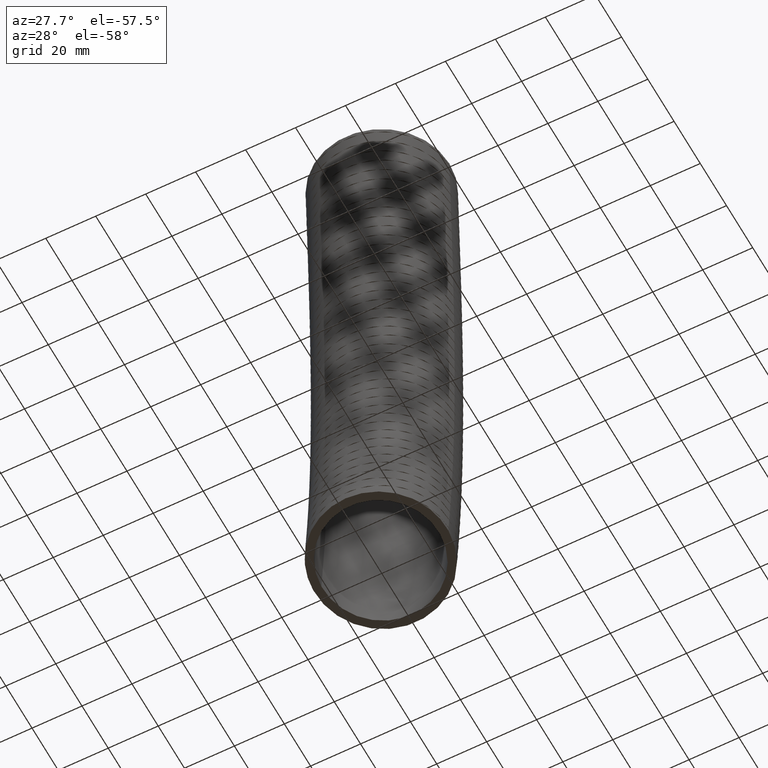
[diagram: clean part render]
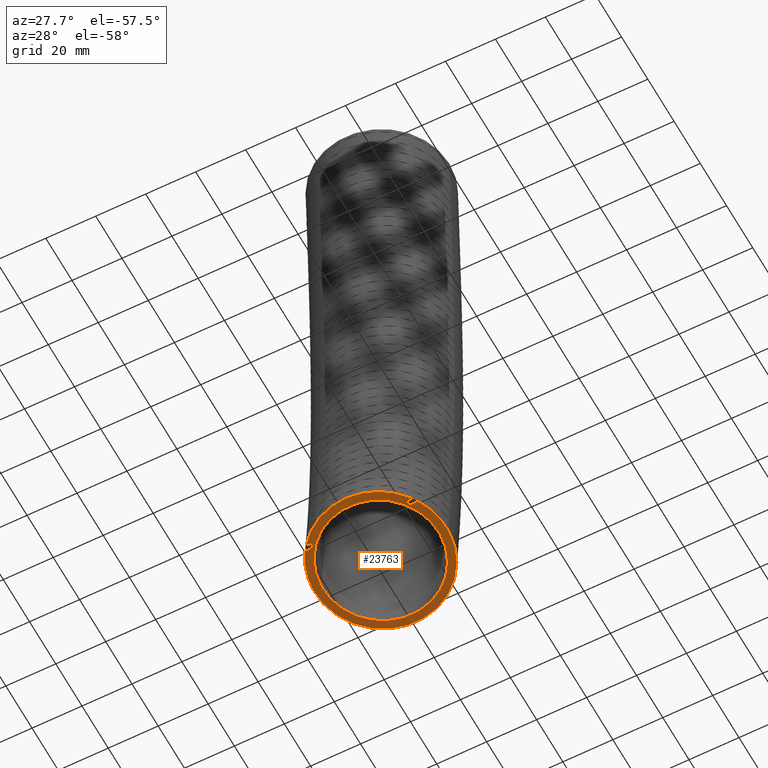
[diagram: same view with one face highlighted and labeled with its STEP entity id]
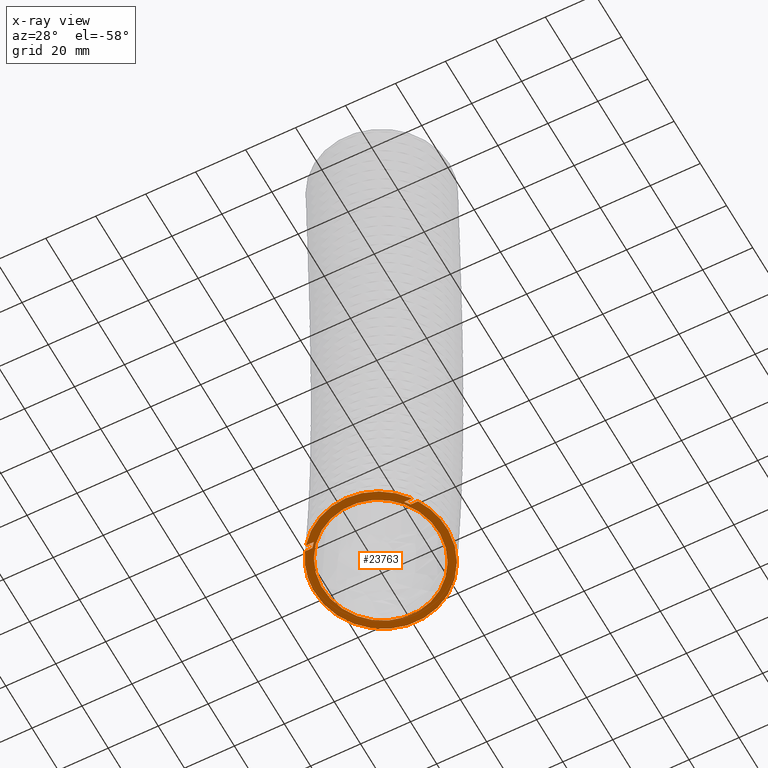
[diagram: x-ray of the same camera — body ghosted, the highlighted face saturated]
A machine part, auxiliary view. The second image highlights one B-rep face of the part: STEP entity #23763.
The next image is the same camera in x-ray: the body ghosted, the highlighted face saturated — about 0% of this face is hidden behind the body in this view.
In plain terms, the highlighted planar face has unit normal (0, 0.134, 0.991).
Its self-contained STEP definition (entity closure, byte-faithful):
#1200 = DIRECTION ( 'NONE',  ( 1.000000000000000000, 0.0000000000000000000, 0.0000000000000000000 ) ) ;
#1214 = DIRECTION ( 'NONE',  ( 0.0000000000000000000, 0.1340072641038699800, 0.9909803495364555300 ) ) ;
#1215 = AXIS2_PLACEMENT_3D ( 'NONE', #1217, #1214, #1200 ) ;
#1216 = CIRCLE ( 'NONE', #1215, 1.064999999999999900 ) ;
#1217 = CARTESIAN_POINT ( 'NONE',  ( 0.0000000000000000000, -0.02999999999999988400, -9.569999999999996700 ) ) ;
#1219 = CARTESIAN_POINT ( 'NONE',  ( 0.8372844202770108900, -0.6822275521257193900, -9.481801248254399200 ) ) ;
#1253 = CARTESIAN_POINT ( 'NONE',  ( -0.8372844202770108900, -0.6822275521257193900, -9.481801248254399200 ) ) ;
#1496 = CARTESIAN_POINT ( 'NONE',  ( -1.064999999999999900, -0.02999999999999994300, -9.569999999999996700 ) ) ;
#1515 = DIRECTION ( 'NONE',  ( 1.000000000000000000, 0.0000000000000000000, 0.0000000000000000000 ) ) ;
#1516 = DIRECTION ( 'NONE',  ( 0.0000000000000000000, 0.1340072641038699800, 0.9909803495364555300 ) ) ;
#1517 = CARTESIAN_POINT ( 'NONE',  ( 0.0000000000000000000, -0.02999999999999988400, -9.569999999999996700 ) ) ;
#1518 = AXIS2_PLACEMENT_3D ( 'NONE', #1517, #1516, #1515 ) ;
#1519 = CIRCLE ( 'NONE', #1518, 1.064999999999999900 ) ;
#1597 = CARTESIAN_POINT ( 'NONE',  ( -0.8909010816090049400, -0.6082778034935592000, -9.491801248254399000 ) ) ;
#1801 = CARTESIAN_POINT ( 'NONE',  ( 1.064999999999999900, -0.03000000000000007200, -9.569999999999996700 ) ) ;
#1812 = DIRECTION ( 'NONE',  ( 1.000000000000000000, 0.0000000000000000000, 0.0000000000000000000 ) ) ;
#1813 = DIRECTION ( 'NONE',  ( 0.0000000000000000000, 0.1340072641038699800, 0.9909803495364555300 ) ) ;
#1814 = CARTESIAN_POINT ( 'NONE',  ( 0.0000000000000000000, -0.02999999999999988400, -9.569999999999996700 ) ) ;
#1815 = AXIS2_PLACEMENT_3D ( 'NONE', #1814, #1813, #1812 ) ;
#1816 = CIRCLE ( 'NONE', #1815, 1.064999999999999900 ) ;
#7131 = VERTEX_POINT ( 'NONE', #1219 ) ;
#7371 = EDGE_CURVE ( 'NONE', #7379, #7131, #1216, .T. ) ;
#7379 = VERTEX_POINT ( 'NONE', #1253 ) ;
#8498 = VERTEX_POINT ( 'NONE', #1496 ) ;
#8832 = EDGE_CURVE ( 'NONE', #8498, #9342, #1519, .T. ) ;
#9342 = VERTEX_POINT ( 'NONE', #1597 ) ;
#10315 = EDGE_CURVE ( 'NONE', #10359, #8498, #1816, .T. ) ;
#10359 = VERTEX_POINT ( 'NONE', #1801 ) ;
#11176 = CARTESIAN_POINT ( 'NONE',  ( 0.9350000000000000500, -0.02999999999999988400, -9.569999999999996700 ) ) ;
#11177 = DIRECTION ( 'NONE',  ( 1.000000000000000000, 0.0000000000000000000, 0.0000000000000000000 ) ) ;
#11178 = DIRECTION ( 'NONE',  ( 0.0000000000000000000, 0.1340072641038699800, 0.9909803495364555300 ) ) ;
#11179 = AXIS2_PLACEMENT_3D ( 'NONE', #11186, #11178, #11177 ) ;
#11180 = CIRCLE ( 'NONE', #11179, 0.9350000000000000500 ) ;
#11186 = CARTESIAN_POINT ( 'NONE',  ( 0.0000000000000000000, -0.02999999999999988400, -9.569999999999996700 ) ) ;
#13339 = FACE_OUTER_BOUND ( 'NONE', #23758, .T. ) ;
#13340 = DIRECTION ( 'NONE',  ( 1.000000000000000000, 0.0000000000000000000, 0.0000000000000000000 ) ) ;
#13341 = DIRECTION ( 'NONE',  ( 0.0000000000000000000, 0.1340072641038699800, 0.9909803495364555300 ) ) ;
#13342 = CARTESIAN_POINT ( 'NONE',  ( 0.0000000000000000000, -0.02999999999999988400, -9.569999999999996700 ) ) ;
#13343 = AXIS2_PLACEMENT_3D ( 'NONE', #13342, #13341, #13340 ) ;
#13344 = CIRCLE ( 'NONE', #13343, 0.9350000000000000500 ) ;
#13345 = FACE_BOUND ( 'NONE', #23764, .T. ) ;
#13351 = CARTESIAN_POINT ( 'NONE',  ( -0.7137238438844885100, -0.6822275521257199500, -9.481801248254399200 ) ) ;
#13367 = DIRECTION ( 'NONE',  ( 1.000000000000000000, 0.0000000000000000000, 0.0000000000000000000 ) ) ;
#13368 = DIRECTION ( 'NONE',  ( 0.0000000000000000000, 0.1340072641038699800, 0.9909803495364555300 ) ) ;
#13369 = AXIS2_PLACEMENT_3D ( 'NONE', #13373, #13368, #13367 ) ;
#13370 = CIRCLE ( 'NONE', #13369, 1.064999999999999900 ) ;
#13371 = CARTESIAN_POINT ( 'NONE',  ( 0.8909010816090049400, -0.6082778034935592000, -9.491801248254399000 ) ) ;
#13373 = CARTESIAN_POINT ( 'NONE',  ( 0.0000000000000000000, -0.02999999999999988400, -9.569999999999996700 ) ) ;
#13374 = DIRECTION ( 'NONE',  ( 1.000000000000000000, 0.0000000000000000000, 0.0000000000000000000 ) ) ;
#13375 = DIRECTION ( 'NONE',  ( 0.0000000000000000000, 0.1340072641038700100, 0.9909803495364556400 ) ) ;
#13376 = CARTESIAN_POINT ( 'NONE',  ( 0.0000000000000000000, -0.02999999999999988400, -9.569999999999996700 ) ) ;
#13377 = AXIS2_PLACEMENT_3D ( 'NONE', #13376, #13375, #13374 ) ;
#13378 = PLANE ( 'NONE',  #13377 ) ;
#13425 = DIRECTION ( 'NONE',  ( 1.000000000000000000, 0.0000000000000000000, 0.0000000000000000000 ) ) ;
#13426 = VECTOR ( 'NONE', #13425, 39.37007874015748100 ) ;
#13427 = CARTESIAN_POINT ( 'NONE',  ( 0.0000000000000000000, -0.6082778034935589800, -9.491801248254399000 ) ) ;
#13428 = LINE ( 'NONE', #13427, #13426 ) ;
#13433 = CARTESIAN_POINT ( 'NONE',  ( 0.7752974674813404300, -0.6082778034935589800, -9.491801248254399000 ) ) ;
#13434 = DIRECTION ( 'NONE',  ( 1.000000000000000000, 0.0000000000000000000, 0.0000000000000000000 ) ) ;
#13435 = VECTOR ( 'NONE', #13434, 39.37007874015748100 ) ;
#13436 = CARTESIAN_POINT ( 'NONE',  ( 0.0000000000000000000, -0.6082778034935589800, -9.491801248254399000 ) ) ;
#13441 = LINE ( 'NONE', #13436, #13435 ) ;
#13461 = CARTESIAN_POINT ( 'NONE',  ( -0.7137238438844885100, -0.6822275521257199500, -9.481801248254399200 ) ) ;
#13462 = CARTESIAN_POINT ( 'NONE',  ( -0.7354636506998639700, -0.6586066568287077800, -9.484995430213626100 ) ) ;
#13463 = CARTESIAN_POINT ( 'NONE',  ( -0.7560050488044560700, -0.6339364955217584600, -9.488331501229858100 ) ) ;
#13464 = CARTESIAN_POINT ( 'NONE',  ( -0.7752974674813404300, -0.6082778034935589800, -9.491801248254399000 ) ) ;
#13465 =( BOUNDED_CURVE ( )  B_SPLINE_CURVE ( 3, ( #13464, #13463, #13462, #13461 ),
 .UNSPECIFIED., .F., .T. ) 
 B_SPLINE_CURVE_WITH_KNOTS ( ( 4, 4 ),
 ( 5.357096220183385600, 5.456341328631536300 ),
 .UNSPECIFIED. ) 
 CURVE ( )  GEOMETRIC_REPRESENTATION_ITEM ( )  RATIONAL_B_SPLINE_CURVE ( ( 1.000000000000000000, 0.9991793691181399800, 0.9991793691181399800, 1.000000000000000000 ) ) 
 REPRESENTATION_ITEM ( '' )  );
#13466 = CARTESIAN_POINT ( 'NONE',  ( -0.7752974674813404300, -0.6082778034935589800, -9.491801248254399000 ) ) ;
#13550 = DIRECTION ( 'NONE',  ( -1.000000000000000000, 0.0000000000000000000, 0.0000000000000000000 ) ) ;
#13551 = VECTOR ( 'NONE', #13550, 39.37007874015748100 ) ;
#13552 = CARTESIAN_POINT ( 'NONE',  ( 0.0000000000000000000, -0.6822275521257193900, -9.481801248254399200 ) ) ;
#13553 = LINE ( 'NONE', #13552, #13551 ) ;
#13574 = DIRECTION ( 'NONE',  ( -1.000000000000000000, 0.0000000000000000000, 0.0000000000000000000 ) ) ;
#13575 = VECTOR ( 'NONE', #13574, 39.37007874015748100 ) ;
#13576 = CARTESIAN_POINT ( 'NONE',  ( 0.0000000000000000000, -0.6822275521257193900, -9.481801248254399200 ) ) ;
#13577 = LINE ( 'NONE', #13576, #13575 ) ;
#13669 = CARTESIAN_POINT ( 'NONE',  ( 0.7752974674813404300, -0.6082778034935589800, -9.491801248254399000 ) ) ;
#13670 = CARTESIAN_POINT ( 'NONE',  ( 0.7560050488044558500, -0.6339364955217587900, -9.488331501229858100 ) ) ;
#13671 = CARTESIAN_POINT ( 'NONE',  ( 0.7354636506998636400, -0.6586066568287080000, -9.484995430213626100 ) ) ;
#13672 = CARTESIAN_POINT ( 'NONE',  ( 0.7137238438844885100, -0.6822275521257199500, -9.481801248254399200 ) ) ;
#13673 = CARTESIAN_POINT ( 'NONE',  ( 0.7137238438844885100, -0.6822275521257199500, -9.481801248254399200 ) ) ;
#13674 =( BOUNDED_CURVE ( )  B_SPLINE_CURVE ( 3, ( #13672, #13671, #13670, #13669 ),
 .UNSPECIFIED., .F., .F. ) 
 B_SPLINE_CURVE_WITH_KNOTS ( ( 4, 4 ),
 ( 0.8268439785480497000, 0.9260890869962005200 ),
 .UNSPECIFIED. ) 
 CURVE ( )  GEOMETRIC_REPRESENTATION_ITEM ( )  RATIONAL_B_SPLINE_CURVE ( ( 1.000000000000000000, 0.9991793691181399800, 0.9991793691181399800, 1.000000000000000000 ) ) 
 REPRESENTATION_ITEM ( '' )  );
#19743 = CARTESIAN_POINT ( 'NONE',  ( -0.9350000000000001600, -0.02999999999999995700, -9.569999999999996700 ) ) ;
#23320 = EDGE_CURVE ( 'NONE', #23323, #24488, #11180, .T. ) ;
#23323 = VERTEX_POINT ( 'NONE', #11176 ) ;
#23755 = VERTEX_POINT ( 'NONE', #13351 ) ;
#23758 = EDGE_LOOP ( 'NONE', ( #23802, #23794, #23785, #23788, #23782, #23790, #23786, #23817, #23796, #23811 ) ) ;
#23759 = EDGE_CURVE ( 'NONE', #24488, #23323, #13344, .T. ) ;
#23760 = ORIENTED_EDGE ( 'NONE', *, *, #23759, .T. ) ;
#23761 = ORIENTED_EDGE ( 'NONE', *, *, #23320, .T. ) ;
#23763 = ADVANCED_FACE ( 'NONE', ( #13345, #13339 ), #13378, .F. ) ;
#23764 = EDGE_LOOP ( 'NONE', ( #23761, #23760 ) ) ;
#23773 = VERTEX_POINT ( 'NONE', #13371 ) ;
#23775 = EDGE_CURVE ( 'NONE', #23773, #10359, #13370, .T. ) ;
#23782 = ORIENTED_EDGE ( 'NONE', *, *, #10315, .F. ) ;
#23784 = EDGE_CURVE ( 'NONE', #23792, #23773, #13428, .T. ) ;
#23785 = ORIENTED_EDGE ( 'NONE', *, *, #23789, .F. ) ;
#23786 = ORIENTED_EDGE ( 'NONE', *, *, #23784, .F. ) ;
#23788 = ORIENTED_EDGE ( 'NONE', *, *, #8832, .F. ) ;
#23789 = EDGE_CURVE ( 'NONE', #9342, #23795, #13441, .T. ) ;
#23790 = ORIENTED_EDGE ( 'NONE', *, *, #23775, .F. ) ;
#23792 = VERTEX_POINT ( 'NONE', #13433 ) ;
#23793 = EDGE_CURVE ( 'NONE', #23795, #23755, #13465, .T. ) ;
#23794 = ORIENTED_EDGE ( 'NONE', *, *, #23793, .F. ) ;
#23795 = VERTEX_POINT ( 'NONE', #13466 ) ;
#23796 = ORIENTED_EDGE ( 'NONE', *, *, #23812, .F. ) ;
#23802 = ORIENTED_EDGE ( 'NONE', *, *, #23803, .F. ) ;
#23803 = EDGE_CURVE ( 'NONE', #23755, #7379, #13553, .T. ) ;
#23811 = ORIENTED_EDGE ( 'NONE', *, *, #7371, .F. ) ;
#23812 = EDGE_CURVE ( 'NONE', #7131, #23820, #13577, .T. ) ;
#23817 = ORIENTED_EDGE ( 'NONE', *, *, #23818, .F. ) ;
#23818 = EDGE_CURVE ( 'NONE', #23820, #23792, #13674, .T. ) ;
#23820 = VERTEX_POINT ( 'NONE', #13673 ) ;
#24488 = VERTEX_POINT ( 'NONE', #19743 ) ;